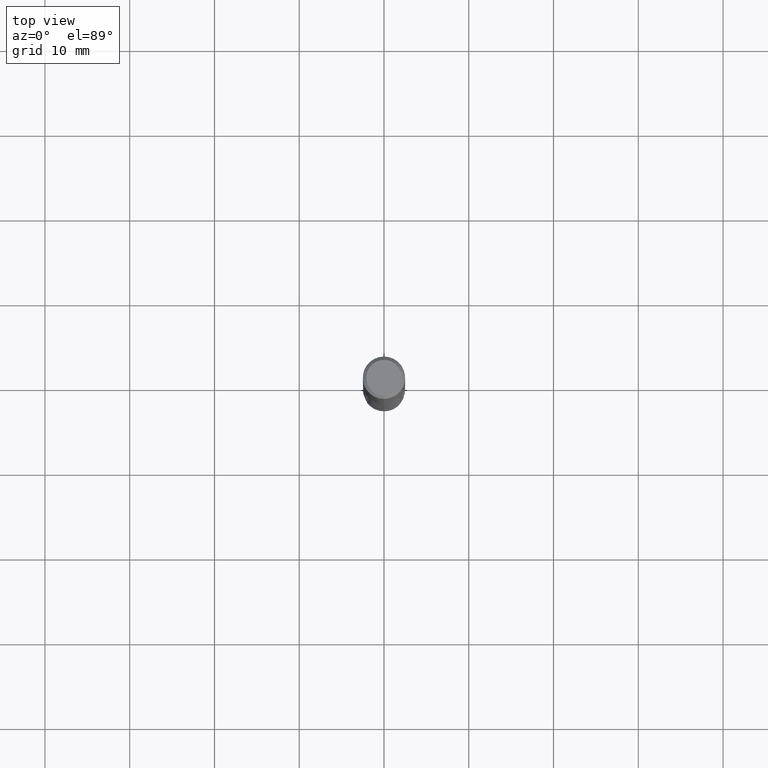
[diagram: clean part render]
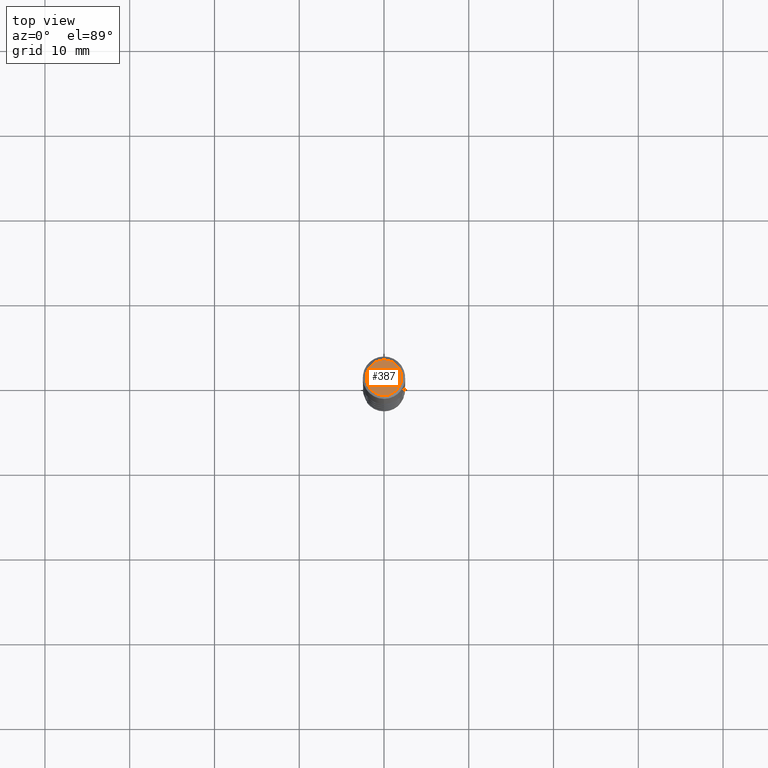
[diagram: same view with one face highlighted and labeled with its STEP entity id]
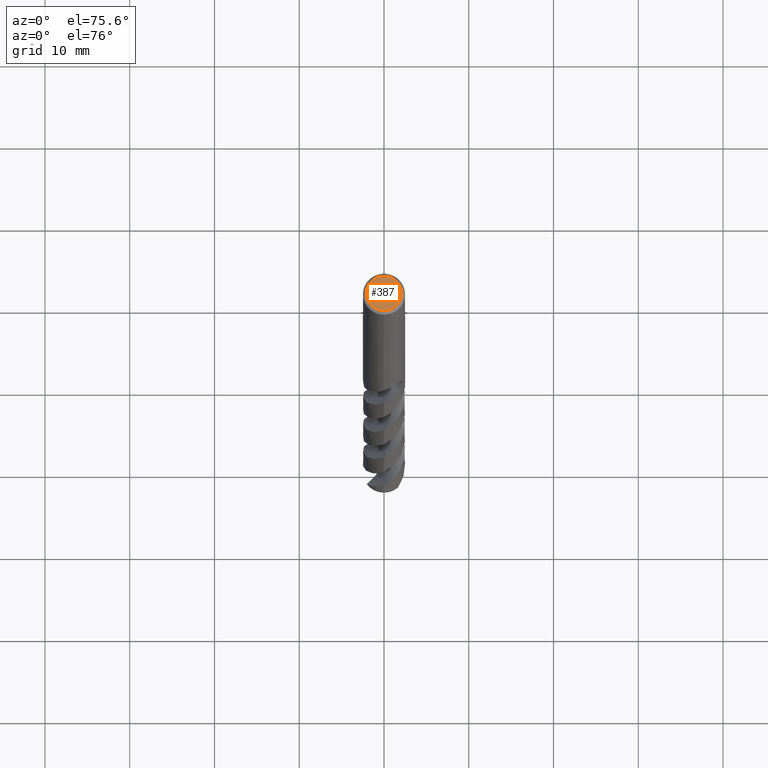
[diagram: same view with one face highlighted and labeled with its STEP entity id]
A machine part, top view. The second image highlights one B-rep face of the part: STEP entity #387.
A second angle (auxiliary view) of the same face is appended — the face is thin or edge-on in the first view.
In plain terms, the highlighted planar face has unit normal (-0, 0, 1).
Its self-contained STEP definition (entity closure, byte-faithful):
#387=ADVANCED_FACE('',(#893),#894,.T.);
#487=VERTEX_POINT('',#1008);
#603=EDGE_CURVE('',#611,#487,#1134,.T.);
#611=VERTEX_POINT('',#1142);
#649=EDGE_CURVE('',#487,#611,#1183,.T.);
#893=FACE_OUTER_BOUND('',#4086,.T.);
#894=PLANE('',#4087);
#1008=CARTESIAN_POINT('',(0.0,2.1,0.0));
#1134=CIRCLE('',#6101,2.1);
#1142=CARTESIAN_POINT('',(2.57167334302699E-016,-2.1,0.0));
#1183=CIRCLE('',#6420,2.1);
#4086=EDGE_LOOP('',(#8763,#8764));
#4087=AXIS2_PLACEMENT_3D('',#8765,#8766,#8767);
#6101=AXIS2_PLACEMENT_3D('',#9074,#9075,#9076);
#6420=AXIS2_PLACEMENT_3D('',#9121,#9122,#9123);
#8763=ORIENTED_EDGE('',*,*,#649,.F.);
#8764=ORIENTED_EDGE('',*,*,#603,.F.);
#8765=CARTESIAN_POINT('',(0.0,1.05,0.0));
#8766=DIRECTION('',(-0.0,0.0,1.0));
#8767=DIRECTION('',(0.0,-1.0,0.0));
#9074=CARTESIAN_POINT('',(0.0,0.0,0.0));
#9075=DIRECTION('',(0.0,0.0,-1.0));
#9076=DIRECTION('',(0.0,1.0,0.0));
#9121=CARTESIAN_POINT('',(0.0,0.0,0.0));
#9122=DIRECTION('',(0.0,0.0,-1.0));
#9123=DIRECTION('',(0.0,1.0,0.0));